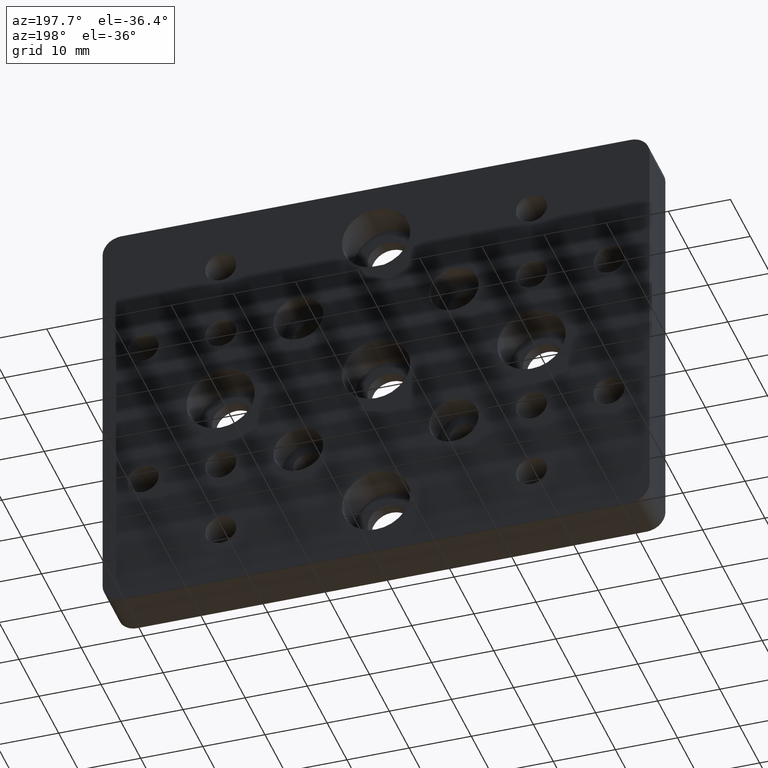
[diagram: clean part render]
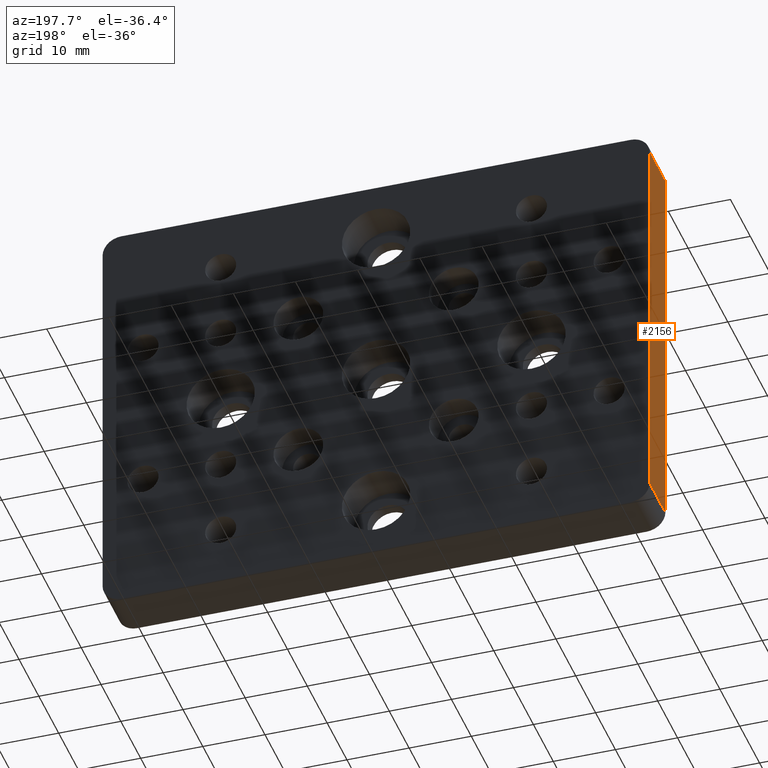
[diagram: same view with one face highlighted and labeled with its STEP entity id]
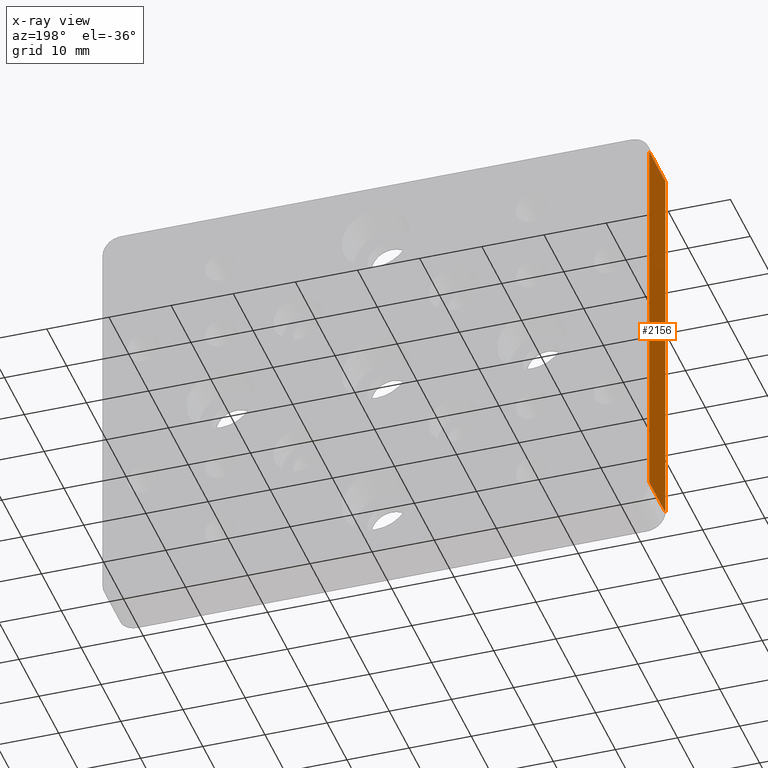
[diagram: x-ray of the same camera — body ghosted, the highlighted face saturated]
A machine part, auxiliary view. The second image highlights one B-rep face of the part: STEP entity #2156.
The next image is the same camera in x-ray: the body ghosted, the highlighted face saturated — about 0% of this face is hidden behind the body in this view.
In plain terms, the highlighted planar face has unit normal (1, 0, 0).
Its self-contained STEP definition (entity closure, byte-faithful):
#9 = LINE ( 'NONE', #1074, #1667 ) ;
#20 = EDGE_CURVE ( 'NONE', #2373, #904, #1065, .T. ) ;
#52 = DIRECTION ( 'NONE',  ( -0.0000000000000000000, 1.000000000000000000, -0.0000000000000000000 ) ) ;
#54 = ORIENTED_EDGE ( 'NONE', *, *, #1155, .T. ) ;
#59 = EDGE_CURVE ( 'NONE', #2373, #776, #458, .T. ) ;
#61 = ORIENTED_EDGE ( 'NONE', *, *, #59, .T. ) ;
#300 = DIRECTION ( 'NONE',  ( 0.0000000000000000000, 0.0000000000000000000, -1.000000000000000000 ) ) ;
#455 = CARTESIAN_POINT ( 'NONE',  ( -44.00000000000000000, 8.000000000000000000, -31.50000000000000000 ) ) ;
#458 = LINE ( 'NONE', #455, #1969 ) ;
#523 = VECTOR ( 'NONE', #1675, 1000.000000000000000 ) ;
#637 = CARTESIAN_POINT ( 'NONE',  ( -44.00000000000000000, 8.000000000000000000, -34.50000000000000000 ) ) ;
#644 = DIRECTION ( 'NONE',  ( 0.0000000000000000000, -1.000000000000000000, 0.0000000000000000000 ) ) ;
#776 = VERTEX_POINT ( 'NONE', #2522 ) ;
#798 = CARTESIAN_POINT ( 'NONE',  ( -44.00000000000000000, 0.0000000000000000000, 31.50000000000000000 ) ) ;
#904 = VERTEX_POINT ( 'NONE', #945 ) ;
#945 = CARTESIAN_POINT ( 'NONE',  ( -44.00000000000000000, 8.000000000000000000, 31.50000000000000000 ) ) ;
#985 = CARTESIAN_POINT ( 'NONE',  ( -44.00000000000000000, 0.0000000000000000000, -34.50000000000000000 ) ) ;
#1008 = EDGE_CURVE ( 'NONE', #776, #2379, #1731, .T. ) ;
#1043 = DIRECTION ( 'NONE',  ( 0.0000000000000000000, 0.0000000000000000000, 1.000000000000000000 ) ) ;
#1065 = LINE ( 'NONE', #637, #523 ) ;
#1074 = CARTESIAN_POINT ( 'NONE',  ( -44.00000000000000000, 8.000000000000000000, 31.50000000000000000 ) ) ;
#1155 = EDGE_CURVE ( 'NONE', #2379, #904, #9, .T. ) ;
#1182 = VECTOR ( 'NONE', #1043, 1000.000000000000000 ) ;
#1191 = ORIENTED_EDGE ( 'NONE', *, *, #1008, .T. ) ;
#1226 = ORIENTED_EDGE ( 'NONE', *, *, #20, .F. ) ;
#1298 = EDGE_LOOP ( 'NONE', ( #1226, #61, #1191, #54 ) ) ;
#1301 = CARTESIAN_POINT ( 'NONE',  ( -44.00000000000000000, 8.000000000000000000, -34.50000000000000000 ) ) ;
#1509 = PLANE ( 'NONE',  #2516 ) ;
#1658 = CARTESIAN_POINT ( 'NONE',  ( -44.00000000000000000, 8.000000000000000000, -31.50000000000000000 ) ) ;
#1667 = VECTOR ( 'NONE', #52, 1000.000000000000000 ) ;
#1675 = DIRECTION ( 'NONE',  ( 0.0000000000000000000, 0.0000000000000000000, 1.000000000000000000 ) ) ;
#1731 = LINE ( 'NONE', #985, #1182 ) ;
#1941 = DIRECTION ( 'NONE',  ( 1.000000000000000000, 0.0000000000000000000, 0.0000000000000000000 ) ) ;
#1969 = VECTOR ( 'NONE', #644, 1000.000000000000000 ) ;
#2156 = ADVANCED_FACE ( 'NONE', ( #2569 ), #1509, .F. ) ;
#2373 = VERTEX_POINT ( 'NONE', #1658 ) ;
#2379 = VERTEX_POINT ( 'NONE', #798 ) ;
#2516 = AXIS2_PLACEMENT_3D ( 'NONE', #1301, #1941, #300 ) ;
#2522 = CARTESIAN_POINT ( 'NONE',  ( -44.00000000000000000, 0.0000000000000000000, -31.50000000000000000 ) ) ;
#2569 = FACE_OUTER_BOUND ( 'NONE', #1298, .T. ) ;